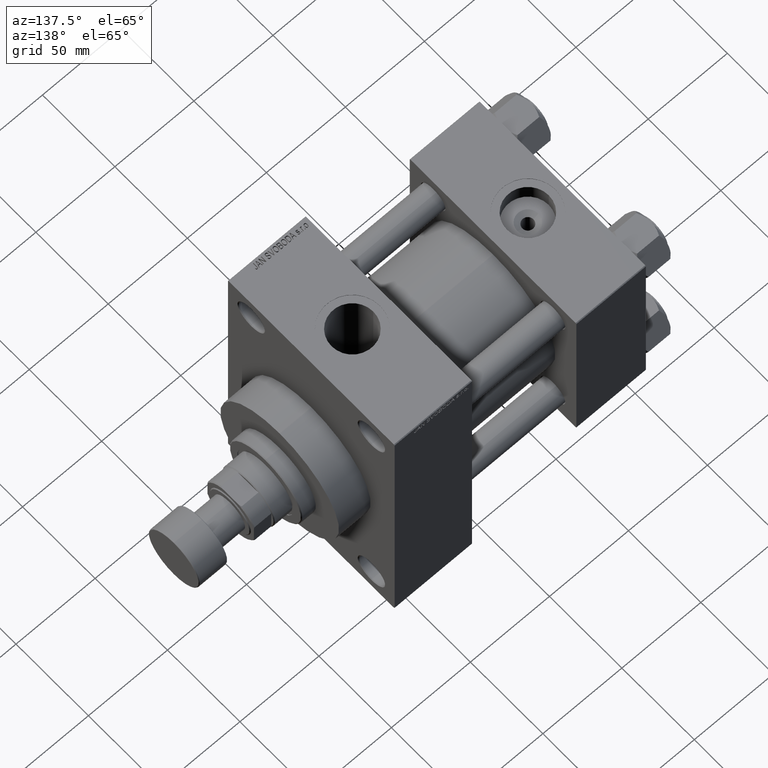
[diagram: clean part render]
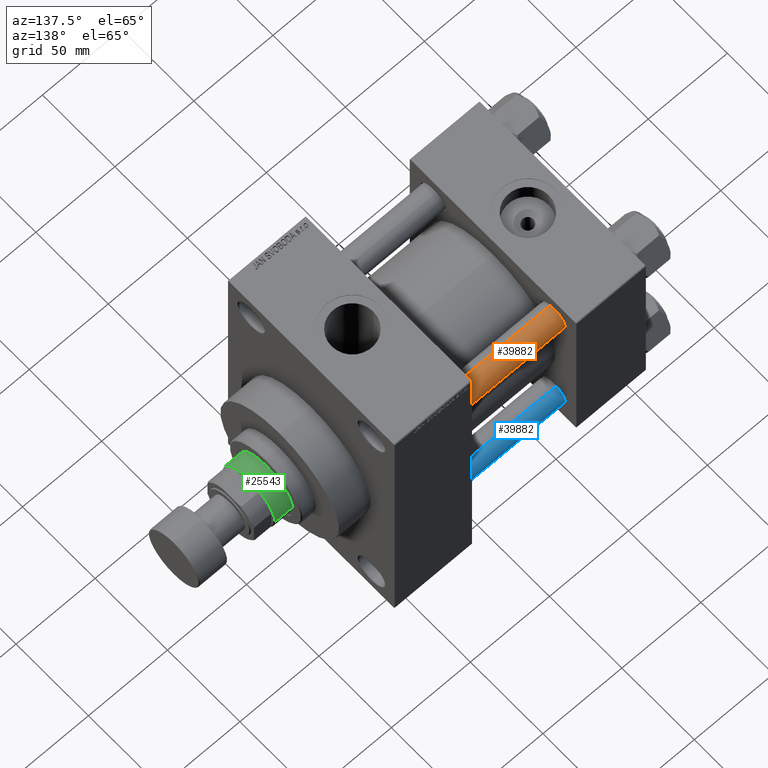
[diagram: same view with three faces highlighted in distinct colors, each labeled with its STEP entity id]
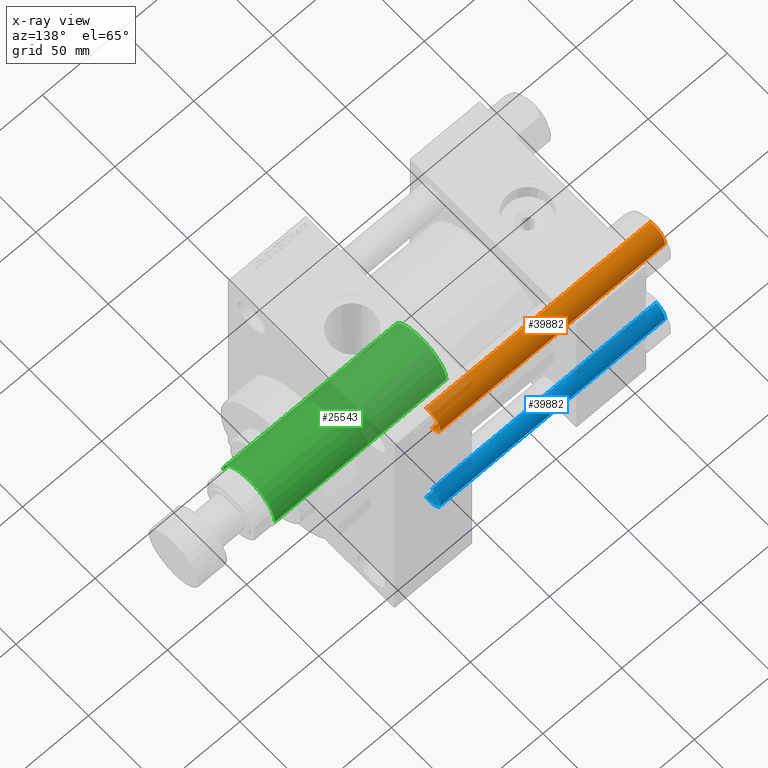
[diagram: x-ray of the same camera — body ghosted, the three highlighted faces saturated]
A machine part, auxiliary view with three faces highlighted in distinct colors.
The next image is the same camera in x-ray (body ghosted, the three faces saturated) — at least one of them is partly hidden behind the body in this view.
Their STEP definitions:

[orange] entity #39882 — the highlighted cylindrical surface (edge-blend (fillet) strip) has radius 8 mm, axis along (-1, -0, 0).
#103 = CARTESIAN_POINT ( 'NONE',  ( 8.000000000000000000, 9.797174393178825657E-16, 142.4999999999999716 ) ) ;
#1263 = AXIS2_PLACEMENT_3D ( 'NONE', #14834, #29674, #7038 ) ;
#2174 = DIRECTION ( 'NONE',  ( 0.000000000000000000, 0.000000000000000000, -1.000000000000000000 ) ) ;
#4136 = DIRECTION ( 'NONE',  ( -0.000000000000000000, -0.000000000000000000, -1.000000000000000000 ) ) ;
#4770 = DIRECTION ( 'NONE',  ( -0.000000000000000000, -0.000000000000000000, -1.000000000000000000 ) ) ;
#7038 = DIRECTION ( 'NONE',  ( 1.000000000000000000, 0.000000000000000000, 0.000000000000000000 ) ) ;
#8072 = DIRECTION ( 'NONE',  ( -1.000000000000000000, 0.000000000000000000, 0.000000000000000000 ) ) ;
#8905 = VECTOR ( 'NONE', #4770, 1000.000000000000000 ) ;
#9379 = VERTEX_POINT ( 'NONE', #35807 ) ;
#11486 = FACE_OUTER_BOUND ( 'NONE', #24448, .T. ) ;
#12551 = CARTESIAN_POINT ( 'NONE',  ( -8.000000000000000000, 0.000000000000000000, 143.0000000000000000 ) ) ;
#14613 = CARTESIAN_POINT ( 'NONE',  ( 8.000000000000000000, 9.797174393178825657E-16, 143.0000000000000000 ) ) ;
#14834 = CARTESIAN_POINT ( 'NONE',  ( 0.000000000000000000, 0.000000000000000000, 0.4999999999999726885 ) ) ;
#16080 = EDGE_CURVE ( 'NONE', #41975, #38948, #35914, .T. ) ;
#19038 = ORIENTED_EDGE ( 'NONE', *, *, #29500, .T. ) ;
#22677 = CARTESIAN_POINT ( 'NONE',  ( 0.000000000000000000, 0.000000000000000000, 143.0000000000000000 ) ) ;
#24448 = EDGE_LOOP ( 'NONE', ( #39473, #19038, #30529, #29829 ) ) ;
#25901 = AXIS2_PLACEMENT_3D ( 'NONE', #42827, #2174, #42345 ) ;
#26323 = CYLINDRICAL_SURFACE ( 'NONE', #29224, 8.000000000000000000 ) ;
#29224 = AXIS2_PLACEMENT_3D ( 'NONE', #22677, #41426, #8072 ) ;
#29500 = EDGE_CURVE ( 'NONE', #38948, #9379, #40410, .T. ) ;
#29674 = DIRECTION ( 'NONE',  ( -0.000000000000000000, -0.000000000000000000, 1.000000000000000000 ) ) ;
#29829 = ORIENTED_EDGE ( 'NONE', *, *, #32952, .F. ) ;
#30529 = ORIENTED_EDGE ( 'NONE', *, *, #36488, .T. ) ;
#32880 = VECTOR ( 'NONE', #4136, 1000.000000000000000 ) ;
#32952 = EDGE_CURVE ( 'NONE', #41975, #44622, #38122, .T. ) ;
#35807 = CARTESIAN_POINT ( 'NONE',  ( 8.000000000000000000, 9.797174393178825657E-16, 0.4999999999999726885 ) ) ;
#35914 = CIRCLE ( 'NONE', #25901, 8.000000000000000000 ) ;
#36213 = CIRCLE ( 'NONE', #1263, 8.000000000000000000 ) ;
#36488 = EDGE_CURVE ( 'NONE', #9379, #44622, #36213, .T. ) ;
#37012 = CARTESIAN_POINT ( 'NONE',  ( -8.000000000000000000, 0.000000000000000000, 142.4999999999999716 ) ) ;
#38122 = LINE ( 'NONE', #12551, #8905 ) ;
#38948 = VERTEX_POINT ( 'NONE', #103 ) ;
#39473 = ORIENTED_EDGE ( 'NONE', *, *, #16080, .T. ) ;
#39882 = ADVANCED_FACE ( 'NONE', ( #11486 ), #26323, .T. ) ;
#40410 = LINE ( 'NONE', #14613, #32880 ) ;
#41426 = DIRECTION ( 'NONE',  ( -0.000000000000000000, -0.000000000000000000, -1.000000000000000000 ) ) ;
#41975 = VERTEX_POINT ( 'NONE', #37012 ) ;
#42345 = DIRECTION ( 'NONE',  ( 1.000000000000000000, 0.000000000000000000, 0.000000000000000000 ) ) ;
#42827 = CARTESIAN_POINT ( 'NONE',  ( 0.000000000000000000, 0.000000000000000000, 142.4999999999999716 ) ) ;
#44622 = VERTEX_POINT ( 'NONE', #46215 ) ;
#46215 = CARTESIAN_POINT ( 'NONE',  ( -8.000000000000000000, 0.000000000000000000, 0.4999999999999726885 ) ) ;

[blue] entity #39882 — the highlighted cylindrical surface (edge-blend (fillet) strip) has radius 8 mm, axis along (1, -0, 0).
#103 = CARTESIAN_POINT ( 'NONE',  ( 8.000000000000000000, 9.797174393178825657E-16, 142.4999999999999716 ) ) ;
#1263 = AXIS2_PLACEMENT_3D ( 'NONE', #14834, #29674, #7038 ) ;
#2174 = DIRECTION ( 'NONE',  ( 0.000000000000000000, 0.000000000000000000, -1.000000000000000000 ) ) ;
#4136 = DIRECTION ( 'NONE',  ( -0.000000000000000000, -0.000000000000000000, -1.000000000000000000 ) ) ;
#4770 = DIRECTION ( 'NONE',  ( -0.000000000000000000, -0.000000000000000000, -1.000000000000000000 ) ) ;
#7038 = DIRECTION ( 'NONE',  ( 1.000000000000000000, 0.000000000000000000, 0.000000000000000000 ) ) ;
#8072 = DIRECTION ( 'NONE',  ( -1.000000000000000000, 0.000000000000000000, 0.000000000000000000 ) ) ;
#8905 = VECTOR ( 'NONE', #4770, 1000.000000000000000 ) ;
#9379 = VERTEX_POINT ( 'NONE', #35807 ) ;
#11486 = FACE_OUTER_BOUND ( 'NONE', #24448, .T. ) ;
#12551 = CARTESIAN_POINT ( 'NONE',  ( -8.000000000000000000, 0.000000000000000000, 143.0000000000000000 ) ) ;
#14613 = CARTESIAN_POINT ( 'NONE',  ( 8.000000000000000000, 9.797174393178825657E-16, 143.0000000000000000 ) ) ;
#14834 = CARTESIAN_POINT ( 'NONE',  ( 0.000000000000000000, 0.000000000000000000, 0.4999999999999726885 ) ) ;
#16080 = EDGE_CURVE ( 'NONE', #41975, #38948, #35914, .T. ) ;
#19038 = ORIENTED_EDGE ( 'NONE', *, *, #29500, .T. ) ;
#22677 = CARTESIAN_POINT ( 'NONE',  ( 0.000000000000000000, 0.000000000000000000, 143.0000000000000000 ) ) ;
#24448 = EDGE_LOOP ( 'NONE', ( #39473, #19038, #30529, #29829 ) ) ;
#25901 = AXIS2_PLACEMENT_3D ( 'NONE', #42827, #2174, #42345 ) ;
#26323 = CYLINDRICAL_SURFACE ( 'NONE', #29224, 8.000000000000000000 ) ;
#29224 = AXIS2_PLACEMENT_3D ( 'NONE', #22677, #41426, #8072 ) ;
#29500 = EDGE_CURVE ( 'NONE', #38948, #9379, #40410, .T. ) ;
#29674 = DIRECTION ( 'NONE',  ( -0.000000000000000000, -0.000000000000000000, 1.000000000000000000 ) ) ;
#29829 = ORIENTED_EDGE ( 'NONE', *, *, #32952, .F. ) ;
#30529 = ORIENTED_EDGE ( 'NONE', *, *, #36488, .T. ) ;
#32880 = VECTOR ( 'NONE', #4136, 1000.000000000000000 ) ;
#32952 = EDGE_CURVE ( 'NONE', #41975, #44622, #38122, .T. ) ;
#35807 = CARTESIAN_POINT ( 'NONE',  ( 8.000000000000000000, 9.797174393178825657E-16, 0.4999999999999726885 ) ) ;
#35914 = CIRCLE ( 'NONE', #25901, 8.000000000000000000 ) ;
#36213 = CIRCLE ( 'NONE', #1263, 8.000000000000000000 ) ;
#36488 = EDGE_CURVE ( 'NONE', #9379, #44622, #36213, .T. ) ;
#37012 = CARTESIAN_POINT ( 'NONE',  ( -8.000000000000000000, 0.000000000000000000, 142.4999999999999716 ) ) ;
#38122 = LINE ( 'NONE', #12551, #8905 ) ;
#38948 = VERTEX_POINT ( 'NONE', #103 ) ;
#39473 = ORIENTED_EDGE ( 'NONE', *, *, #16080, .T. ) ;
#39882 = ADVANCED_FACE ( 'NONE', ( #11486 ), #26323, .T. ) ;
#40410 = LINE ( 'NONE', #14613, #32880 ) ;
#41426 = DIRECTION ( 'NONE',  ( -0.000000000000000000, -0.000000000000000000, -1.000000000000000000 ) ) ;
#41975 = VERTEX_POINT ( 'NONE', #37012 ) ;
#42345 = DIRECTION ( 'NONE',  ( 1.000000000000000000, 0.000000000000000000, 0.000000000000000000 ) ) ;
#42827 = CARTESIAN_POINT ( 'NONE',  ( 0.000000000000000000, 0.000000000000000000, 142.4999999999999716 ) ) ;
#44622 = VERTEX_POINT ( 'NONE', #46215 ) ;
#46215 = CARTESIAN_POINT ( 'NONE',  ( -8.000000000000000000, 0.000000000000000000, 0.4999999999999726885 ) ) ;

[green] entity #25543 — the highlighted cylindrical surface (partial cylindrical patch) has radius 18 mm, axis along (-1, 0, 0).
#2984 = VECTOR ( 'NONE', #5812, 1000.000000000000000 ) ;
#3208 = CIRCLE ( 'NONE', #31217, 18.00000000000000000 ) ;
#4965 = DIRECTION ( 'NONE',  ( 0.000000000000000000, 0.000000000000000000, 1.000000000000000000 ) ) ;
#5812 = DIRECTION ( 'NONE',  ( -0.000000000000000000, -0.000000000000000000, -1.000000000000000000 ) ) ;
#6062 = CARTESIAN_POINT ( 'NONE',  ( -18.00000000000000000, 0.000000000000000000, 46.00000000000000000 ) ) ;
#6082 = CIRCLE ( 'NONE', #10733, 18.00000000000000000 ) ;
#6287 = CARTESIAN_POINT ( 'NONE',  ( 18.00000000000000000, 2.204364238465235428E-15, 155.0000000000000000 ) ) ;
#6496 = CARTESIAN_POINT ( 'NONE',  ( -18.00000000000000000, 0.000000000000000000, 154.4999999999999716 ) ) ;
#6867 = VERTEX_POINT ( 'NONE', #6496 ) ;
#7890 = CARTESIAN_POINT ( 'NONE',  ( 0.000000000000000000, 0.000000000000000000, 46.00000000000000000 ) ) ;
#10147 = DIRECTION ( 'NONE',  ( -1.000000000000000000, 0.000000000000000000, 0.000000000000000000 ) ) ;
#10456 = DIRECTION ( 'NONE',  ( -0.000000000000000000, -0.000000000000000000, -1.000000000000000000 ) ) ;
#10733 = AXIS2_PLACEMENT_3D ( 'NONE', #44664, #36881, #11082 ) ;
#11082 = DIRECTION ( 'NONE',  ( 1.000000000000000000, 0.000000000000000000, 0.000000000000000000 ) ) ;
#11973 = EDGE_CURVE ( 'NONE', #43171, #44194, #3208, .T. ) ;
#17958 = EDGE_CURVE ( 'NONE', #6867, #43171, #25779, .T. ) ;
#18238 = CARTESIAN_POINT ( 'NONE',  ( -18.00000000000000000, 0.000000000000000000, 155.0000000000000000 ) ) ;
#21622 = ORIENTED_EDGE ( 'NONE', *, *, #11973, .T. ) ;
#21819 = CYLINDRICAL_SURFACE ( 'NONE', #33547, 18.00000000000000000 ) ;
#22743 = DIRECTION ( 'NONE',  ( 1.000000000000000000, 0.000000000000000000, 0.000000000000000000 ) ) ;
#23597 = VERTEX_POINT ( 'NONE', #38903 ) ;
#25019 = VECTOR ( 'NONE', #10456, 1000.000000000000000 ) ;
#25543 = ADVANCED_FACE ( 'NONE', ( #33253 ), #21819, .T. ) ;
#25779 = LINE ( 'NONE', #18238, #25019 ) ;
#26720 = ORIENTED_EDGE ( 'NONE', *, *, #46756, .F. ) ;
#31217 = AXIS2_PLACEMENT_3D ( 'NONE', #7890, #4965, #22743 ) ;
#32021 = CARTESIAN_POINT ( 'NONE',  ( 18.00000000000000000, 2.204364238465235428E-15, 46.00000000000000000 ) ) ;
#33253 = FACE_OUTER_BOUND ( 'NONE', #39352, .T. ) ;
#33547 = AXIS2_PLACEMENT_3D ( 'NONE', #47143, #40316, #10147 ) ;
#36881 = DIRECTION ( 'NONE',  ( 0.000000000000000000, 0.000000000000000000, -1.000000000000000000 ) ) ;
#38437 = LINE ( 'NONE', #6287, #2984 ) ;
#38903 = CARTESIAN_POINT ( 'NONE',  ( 18.00000000000000000, 2.204364238465235428E-15, 154.4999999999999716 ) ) ;
#39352 = EDGE_LOOP ( 'NONE', ( #26720, #43796, #43951, #21622 ) ) ;
#40316 = DIRECTION ( 'NONE',  ( -0.000000000000000000, -0.000000000000000000, -1.000000000000000000 ) ) ;
#43171 = VERTEX_POINT ( 'NONE', #6062 ) ;
#43796 = ORIENTED_EDGE ( 'NONE', *, *, #45118, .T. ) ;
#43951 = ORIENTED_EDGE ( 'NONE', *, *, #17958, .T. ) ;
#44194 = VERTEX_POINT ( 'NONE', #32021 ) ;
#44664 = CARTESIAN_POINT ( 'NONE',  ( 0.000000000000000000, 0.000000000000000000, 154.4999999999999716 ) ) ;
#45118 = EDGE_CURVE ( 'NONE', #23597, #6867, #6082, .T. ) ;
#46756 = EDGE_CURVE ( 'NONE', #23597, #44194, #38437, .T. ) ;
#47143 = CARTESIAN_POINT ( 'NONE',  ( 0.000000000000000000, 0.000000000000000000, 155.0000000000000000 ) ) ;